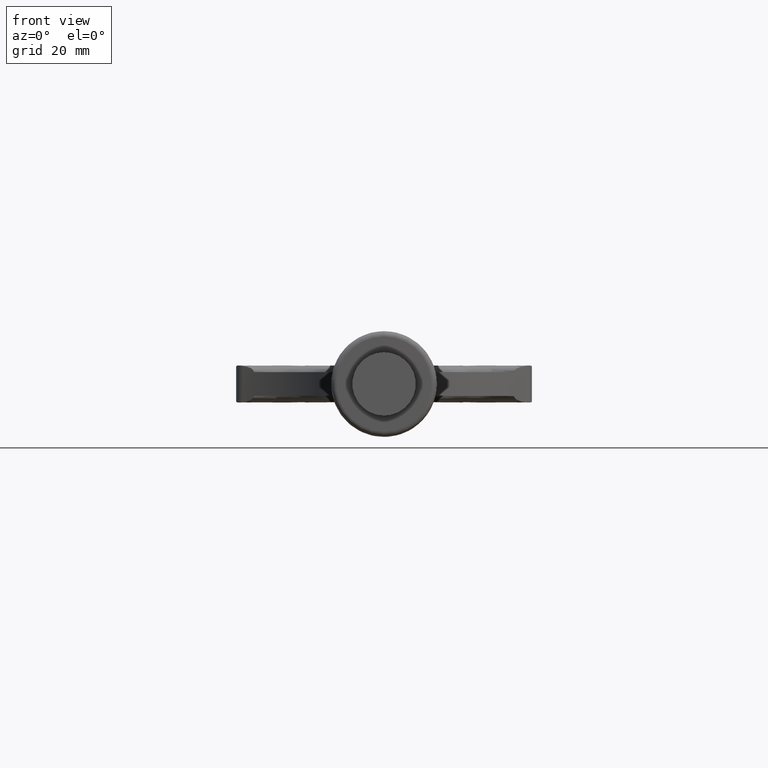
[diagram: clean part render]
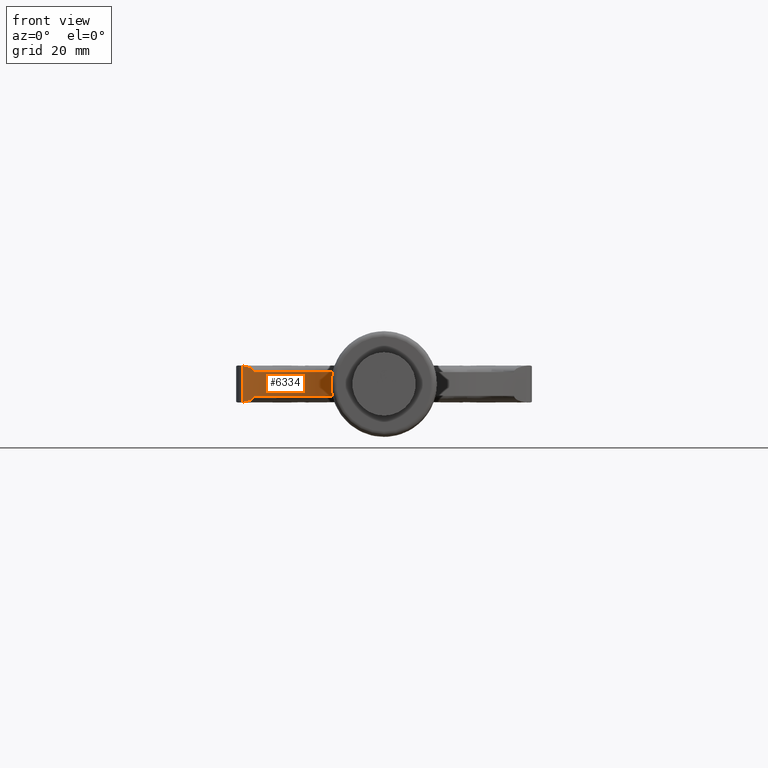
[diagram: same view with one face highlighted and labeled with its STEP entity id]
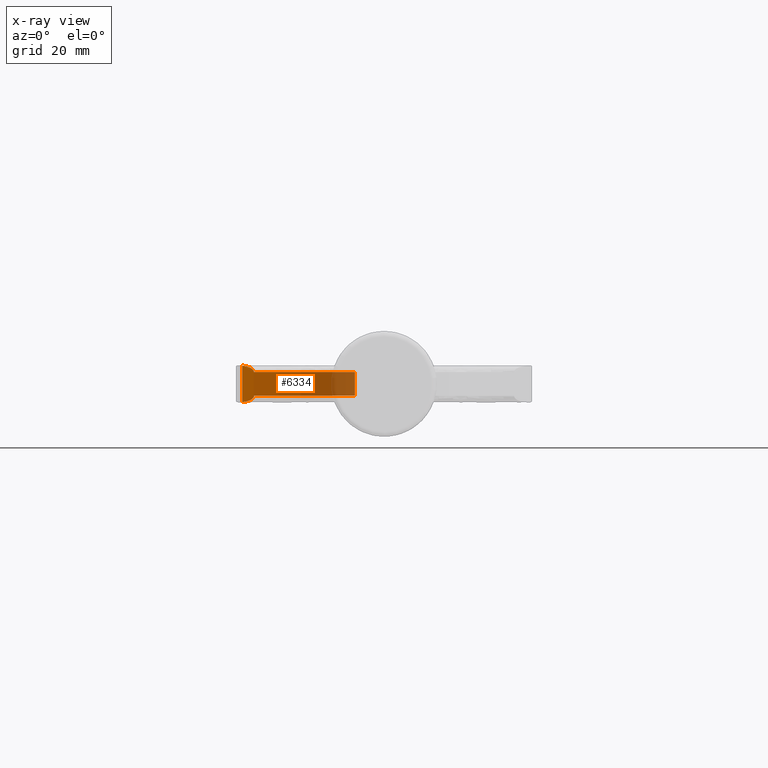
[diagram: x-ray of the same camera — body ghosted, the highlighted face saturated]
A machine part, front view. The second image highlights one B-rep face of the part: STEP entity #6334.
The next image is the same camera in x-ray: the body ghosted, the highlighted face saturated — about 20% of this face is hidden behind the body in this view.
In plain terms, the highlighted cylindrical surface (partial cylindrical patch) has radius 35 mm, axis along (0, -0, -1).
Its self-contained STEP definition (entity closure, byte-faithful):
#304 = CARTESIAN_POINT ( 'NONE',  ( -24.61697314110987378, 20.84523556333763850, 2.254171646362637116 ) ) ;
#474 = ORIENTED_EDGE ( 'NONE', *, *, #8838, .F. ) ;
#579 = CARTESIAN_POINT ( 'NONE',  ( -24.65932095300600579, 20.86686554303449981, -2.485309371848109183 ) ) ;
#676 = VERTEX_POINT ( 'NONE', #13874 ) ;
#720 = CARTESIAN_POINT ( 'NONE',  ( -26.56644646908265983, 21.76446632416523386, -3.423951307633808394 ) ) ;
#831 = DIRECTION ( 'NONE',  ( -0.000000000000000000, -0.000000000000000000, 1.000000000000000000 ) ) ;
#1321 = ORIENTED_EDGE ( 'NONE', *, *, #9101, .T. ) ;
#1536 = CARTESIAN_POINT ( 'NONE',  ( -40.49999999999999289, -10.34335035933024471, 2.250000000000000000 ) ) ;
#1785 = CARTESIAN_POINT ( 'NONE',  ( -26.78378378378378954, 21.85704424555010661, -3.449271754082254837 ) ) ;
#1877 = CARTESIAN_POINT ( 'NONE',  ( -25.92707530728641530, 21.47934438633358667, -3.291917573450048984 ) ) ;
#2014 = CARTESIAN_POINT ( 'NONE',  ( -26.78378378378378954, 21.85704424555010661, 3.449271754082254837 ) ) ;
#2344 = CARTESIAN_POINT ( 'NONE',  ( -26.35104625886444296, 21.67010217247906922, 3.388635594066673473 ) ) ;
#2392 = CARTESIAN_POINT ( 'NONE',  ( -26.78378378378378954, 21.85704424555010661, 3.449271754082254837 ) ) ;
#2499 = CARTESIAN_POINT ( 'NONE',  ( -25.92707530728641530, 21.47934438633358667, 3.291917573450048984 ) ) ;
#2530 = DIRECTION ( 'NONE',  ( 1.000000000000000000, 0.000000000000000000, 0.000000000000000000 ) ) ;
#2545 = CARTESIAN_POINT ( 'NONE',  ( -25.11980452065846237, 21.09685451561344038, 2.969468152335255517 ) ) ;
#2892 = CARTESIAN_POINT ( 'NONE',  ( -25.31463108263019990, 21.19162163096010332, -3.068385925653515311 ) ) ;
#3162 = B_SPLINE_CURVE_WITH_KNOTS ( 'NONE', 3,
 ( #2392, #11464, #2344, #2499, #7044, #10400, #2545, #11418, #10440, #4731, #10244, #304 ),
 .UNSPECIFIED., .F., .F.,
 ( 4, 2, 2, 2, 2, 4 ),
 ( 0.000000000000000000, 0.0007124111233871366963, 0.001424822246774273393, 0.002137233370161409872, 0.002493438931854974425, 0.002849644493548538979 ),
 .UNSPECIFIED. ) ;
#3467 = VECTOR ( 'NONE', #10181, 1000.000000000000000 ) ;
#3795 = VERTEX_POINT ( 'NONE', #5019 ) ;
#4053 = VERTEX_POINT ( 'NONE', #11617 ) ;
#4158 = CARTESIAN_POINT ( 'NONE',  ( -25.71833734963686524, 21.38285863064957937, -3.230848954916328175 ) ) ;
#4218 = DIRECTION ( 'NONE',  ( 1.000000000000000000, 0.000000000000000000, 0.000000000000000000 ) ) ;
#4507 = CARTESIAN_POINT ( 'NONE',  ( -24.61697314110987378, 20.84523556333763850, -2.254171646362637116 ) ) ;
#4558 = CARTESIAN_POINT ( 'NONE',  ( -26.78378378378378954, 21.85704424555010661, 2.250000000000000000 ) ) ;
#4712 = EDGE_CURVE ( 'NONE', #4841, #9670, #13969, .T. ) ;
#4731 = CARTESIAN_POINT ( 'NONE',  ( -24.65932095300600579, 20.86686554303449981, 2.485309371848109183 ) ) ;
#4841 = VERTEX_POINT ( 'NONE', #5585 ) ;
#5019 = CARTESIAN_POINT ( 'NONE',  ( -5.499999999999991118, -10.34335035933024827, 2.250000000000000000 ) ) ;
#5109 = CARTESIAN_POINT ( 'NONE',  ( -25.11980452065846237, 21.09685451561344038, -2.969468152335255517 ) ) ;
#5182 = VERTEX_POINT ( 'NONE', #2014 ) ;
#5241 = CARTESIAN_POINT ( 'NONE',  ( -24.61697314110987378, 20.84523556333763850, -2.254171646362637116 ) ) ;
#5585 = CARTESIAN_POINT ( 'NONE',  ( -5.499999999999991118, -10.34335035933024827, -2.250000000000000000 ) ) ;
#5603 = DIRECTION ( 'NONE',  ( 1.000000000000000000, 0.000000000000000000, 0.000000000000000000 ) ) ;
#6334 = ADVANCED_FACE ( 'NONE', ( #6697 ), #8994, .F. ) ;
#6433 = CARTESIAN_POINT ( 'NONE',  ( -40.49999999999999289, -10.34335035933024471, -2.250000000000000000 ) ) ;
#6697 = FACE_OUTER_BOUND ( 'NONE', #12473, .T. ) ;
#6860 = CARTESIAN_POINT ( 'NONE',  ( -5.499999999999991118, -10.34335035933024827, 2.250000000000000000 ) ) ;
#7044 = CARTESIAN_POINT ( 'NONE',  ( -25.71833734963686524, 21.38285863064957937, 3.230848954916328175 ) ) ;
#7464 = CARTESIAN_POINT ( 'NONE',  ( -24.86168845042774578, 20.96882675706994092, -2.758611762969200409 ) ) ;
#7657 = AXIS2_PLACEMENT_3D ( 'NONE', #6433, #831, #4218 ) ;
#8490 = CARTESIAN_POINT ( 'NONE',  ( -24.61693242061525666, 20.84523993059438851, -2.370045961702891280 ) ) ;
#8812 = EDGE_CURVE ( 'NONE', #4053, #9670, #13270, .T. ) ;
#8838 = EDGE_CURVE ( 'NONE', #3795, #4841, #13756, .T. ) ;
#8994 = CYLINDRICAL_SURFACE ( 'NONE', #9658, 35.00000000000000000 ) ;
#9101 = EDGE_CURVE ( 'NONE', #3795, #676, #9331, .T. ) ;
#9287 = DIRECTION ( 'NONE',  ( 0.000000000000000000, -0.000000000000000000, -1.000000000000000000 ) ) ;
#9331 = CIRCLE ( 'NONE', #12717, 35.00000000000000000 ) ;
#9658 = AXIS2_PLACEMENT_3D ( 'NONE', #1536, #9287, #2530 ) ;
#9670 = VERTEX_POINT ( 'NONE', #4507 ) ;
#10104 = DIRECTION ( 'NONE',  ( -0.000000000000000000, 0.000000000000000000, 1.000000000000000000 ) ) ;
#10181 = DIRECTION ( 'NONE',  ( 0.000000000000000000, -0.000000000000000000, -1.000000000000000000 ) ) ;
#10244 = CARTESIAN_POINT ( 'NONE',  ( -24.61693242061525666, 20.84523993059438851, 2.370045961702891280 ) ) ;
#10293 = ORIENTED_EDGE ( 'NONE', *, *, #12203, .T. ) ;
#10400 = CARTESIAN_POINT ( 'NONE',  ( -25.31463108263019990, 21.19162163096010332, 3.068385925653515311 ) ) ;
#10440 = CARTESIAN_POINT ( 'NONE',  ( -24.78156960418181143, 20.92861208682772656, 2.677002245025099647 ) ) ;
#10696 = ORIENTED_EDGE ( 'NONE', *, *, #8812, .T. ) ;
#10911 = EDGE_CURVE ( 'NONE', #5182, #676, #3162, .T. ) ;
#11215 = CARTESIAN_POINT ( 'NONE',  ( -40.49999999999999289, -10.34335035933024471, 2.250000000000000000 ) ) ;
#11392 = DIRECTION ( 'NONE',  ( 0.000000000000000000, -0.000000000000000000, -1.000000000000000000 ) ) ;
#11418 = CARTESIAN_POINT ( 'NONE',  ( -24.86168845042774578, 20.96882675706994092, 2.758611762969200409 ) ) ;
#11464 = CARTESIAN_POINT ( 'NONE',  ( -26.56644646908265983, 21.76446632416523386, 3.423951307633808394 ) ) ;
#11617 = CARTESIAN_POINT ( 'NONE',  ( -26.78378378378378954, 21.85704424555010661, -3.449271754082254837 ) ) ;
#11843 = CARTESIAN_POINT ( 'NONE',  ( -26.35104625886444296, 21.67010217247906922, -3.388635594066673473 ) ) ;
#11990 = CARTESIAN_POINT ( 'NONE',  ( -24.78156960418181143, 20.92861208682772656, -2.677002245025099647 ) ) ;
#12203 = EDGE_CURVE ( 'NONE', #5182, #4053, #12651, .T. ) ;
#12329 = VECTOR ( 'NONE', #11392, 1000.000000000000000 ) ;
#12473 = EDGE_LOOP ( 'NONE', ( #474, #1321, #13735, #10293, #10696, #12682 ) ) ;
#12651 = LINE ( 'NONE', #4558, #3467 ) ;
#12682 = ORIENTED_EDGE ( 'NONE', *, *, #4712, .F. ) ;
#12717 = AXIS2_PLACEMENT_3D ( 'NONE', #11215, #10104, #5603 ) ;
#13270 = B_SPLINE_CURVE_WITH_KNOTS ( 'NONE', 3,
 ( #1785, #720, #11843, #1877, #4158, #2892, #5109, #7464, #11990, #579, #8490, #5241 ),
 .UNSPECIFIED., .F., .F.,
 ( 4, 2, 2, 2, 2, 4 ),
 ( 0.000000000000000000, 0.0007124111233871366963, 0.001424822246774273393, 0.002137233370161409872, 0.002493438931854974425, 0.002849644493548538979 ),
 .UNSPECIFIED. ) ;
#13735 = ORIENTED_EDGE ( 'NONE', *, *, #10911, .F. ) ;
#13756 = LINE ( 'NONE', #6860, #12329 ) ;
#13874 = CARTESIAN_POINT ( 'NONE',  ( -24.61697314110987378, 20.84523556333763850, 2.254171646362637116 ) ) ;
#13969 = CIRCLE ( 'NONE', #7657, 35.00000000000000000 ) ;